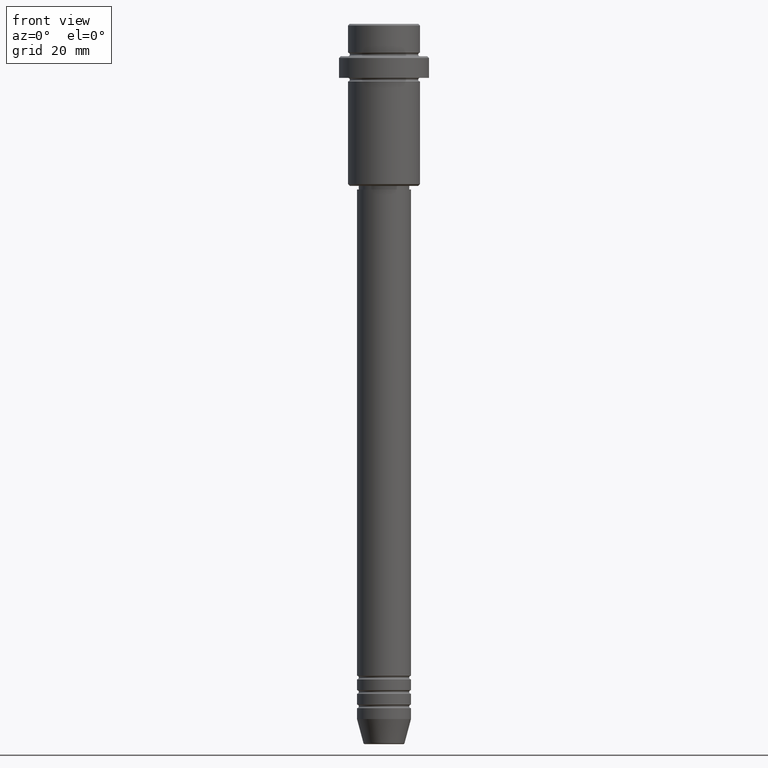
[diagram: clean part render]
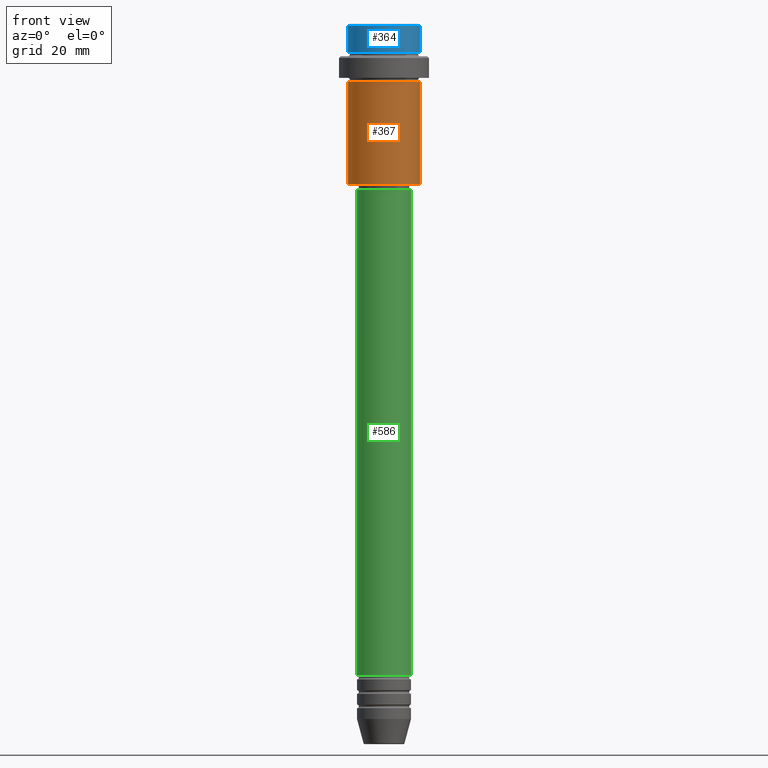
[diagram: same view with three faces highlighted in distinct colors, each labeled with its STEP entity id]
A machine part, front view with three faces highlighted in distinct colors.
Their STEP definitions:

[orange] entity #367 — the highlighted cylindrical surface (edge-blend (fillet) strip) has radius 10 mm, axis along (-0, -0, 1).
#96 = FACE_OUTER_BOUND ( 'NONE', #1417, .T. ) ;
#248 = EDGE_CURVE ( 'NONE', #526, #519, #1131, .T. ) ;
#282 = VECTOR ( 'NONE', #450, 1000.000000000000000 ) ;
#347 = ORIENTED_EDGE ( 'NONE', *, *, #395, .T. ) ;
#366 = CARTESIAN_POINT ( 'NONE',  ( -9.999999999999998224, 1.224646799147353059E-15, 0.000000000000000000 ) ) ;
#367 = ADVANCED_FACE ( 'NONE', ( #96 ), #1047, .T. ) ;
#386 = DIRECTION ( 'NONE',  ( -0.000000000000000000, -0.000000000000000000, 1.000000000000000000 ) ) ;
#395 = EDGE_CURVE ( 'NONE', #519, #584, #550, .T. ) ;
#407 = ORIENTED_EDGE ( 'NONE', *, *, #248, .T. ) ;
#450 = DIRECTION ( 'NONE',  ( -0.000000000000000000, -0.000000000000000000, 1.000000000000000000 ) ) ;
#507 = AXIS2_PLACEMENT_3D ( 'NONE', #1363, #386, #595 ) ;
#519 = VERTEX_POINT ( 'NONE', #940 ) ;
#526 = VERTEX_POINT ( 'NONE', #1071 ) ;
#533 = CARTESIAN_POINT ( 'NONE',  ( 9.999999999999998224, 0.000000000000000000, -16.00000000000000000 ) ) ;
#537 = CARTESIAN_POINT ( 'NONE',  ( 9.999999999999998224, 0.000000000000000000, 0.000000000000000000 ) ) ;
#550 = LINE ( 'NONE', #537, #282 ) ;
#562 = CARTESIAN_POINT ( 'NONE',  ( 0.000000000000000000, 0.000000000000000000, -44.50000000000001421 ) ) ;
#584 = VERTEX_POINT ( 'NONE', #533 ) ;
#595 = DIRECTION ( 'NONE',  ( 1.000000000000000000, 0.000000000000000000, 0.000000000000000000 ) ) ;
#634 = DIRECTION ( 'NONE',  ( 1.000000000000000000, 0.000000000000000000, 0.000000000000000000 ) ) ;
#728 = VECTOR ( 'NONE', #1156, 1000.000000000000000 ) ;
#811 = EDGE_CURVE ( 'NONE', #526, #943, #1020, .T. ) ;
#849 = ORIENTED_EDGE ( 'NONE', *, *, #811, .F. ) ;
#940 = CARTESIAN_POINT ( 'NONE',  ( 9.999999999999998224, 0.000000000000000000, -44.50000000000001421 ) ) ;
#943 = VERTEX_POINT ( 'NONE', #1147 ) ;
#944 = CARTESIAN_POINT ( 'NONE',  ( 0.000000000000000000, 0.000000000000000000, 0.000000000000000000 ) ) ;
#1000 = DIRECTION ( 'NONE',  ( -1.000000000000000000, 0.000000000000000000, 0.000000000000000000 ) ) ;
#1002 = ORIENTED_EDGE ( 'NONE', *, *, #1239, .F. ) ;
#1020 = LINE ( 'NONE', #366, #728 ) ;
#1047 = CYLINDRICAL_SURFACE ( 'NONE', #1155, 9.999999999999998224 ) ;
#1058 = AXIS2_PLACEMENT_3D ( 'NONE', #562, #1343, #1000 ) ;
#1065 = CIRCLE ( 'NONE', #507, 9.999999999999998224 ) ;
#1071 = CARTESIAN_POINT ( 'NONE',  ( -9.999999999999998224, 1.224646799147353059E-15, -44.50000000000001421 ) ) ;
#1131 = CIRCLE ( 'NONE', #1058, 9.999999999999998224 ) ;
#1147 = CARTESIAN_POINT ( 'NONE',  ( -9.999999999999998224, 1.224646799147353059E-15, -16.00000000000000000 ) ) ;
#1155 = AXIS2_PLACEMENT_3D ( 'NONE', #944, #1387, #634 ) ;
#1156 = DIRECTION ( 'NONE',  ( -0.000000000000000000, -0.000000000000000000, 1.000000000000000000 ) ) ;
#1239 = EDGE_CURVE ( 'NONE', #943, #584, #1065, .T. ) ;
#1343 = DIRECTION ( 'NONE',  ( -0.000000000000000000, -0.000000000000000000, 1.000000000000000000 ) ) ;
#1363 = CARTESIAN_POINT ( 'NONE',  ( 0.000000000000000000, 0.000000000000000000, -16.00000000000000000 ) ) ;
#1387 = DIRECTION ( 'NONE',  ( -0.000000000000000000, -0.000000000000000000, 1.000000000000000000 ) ) ;
#1417 = EDGE_LOOP ( 'NONE', ( #849, #407, #347, #1002 ) ) ;

[blue] entity #364 — the highlighted cylindrical surface (edge-blend (fillet) strip) has radius 10 mm, axis along (-0, -0, 1).
#29 = LINE ( 'NONE', #917, #35 ) ;
#35 = VECTOR ( 'NONE', #145, 1000.000000000000000 ) ;
#47 = DIRECTION ( 'NONE',  ( 1.000000000000000000, 0.000000000000000000, 0.000000000000000000 ) ) ;
#73 = CARTESIAN_POINT ( 'NONE',  ( 0.000000000000000000, 0.000000000000000000, 0.000000000000000000 ) ) ;
#106 = AXIS2_PLACEMENT_3D ( 'NONE', #73, #1381, #518 ) ;
#133 = DIRECTION ( 'NONE',  ( -0.000000000000000000, -0.000000000000000000, 1.000000000000000000 ) ) ;
#134 = ORIENTED_EDGE ( 'NONE', *, *, #161, .T. ) ;
#145 = DIRECTION ( 'NONE',  ( -0.000000000000000000, -0.000000000000000000, 1.000000000000000000 ) ) ;
#161 = EDGE_CURVE ( 'NONE', #1142, #474, #961, .T. ) ;
#168 = FACE_OUTER_BOUND ( 'NONE', #664, .T. ) ;
#213 = AXIS2_PLACEMENT_3D ( 'NONE', #993, #133, #434 ) ;
#226 = EDGE_CURVE ( 'NONE', #474, #291, #960, .T. ) ;
#291 = VERTEX_POINT ( 'NONE', #1019 ) ;
#327 = CIRCLE ( 'NONE', #213, 9.999999999999998224 ) ;
#339 = CARTESIAN_POINT ( 'NONE',  ( 9.999999999999998224, 0.000000000000000000, 0.000000000000000000 ) ) ;
#364 = ADVANCED_FACE ( 'NONE', ( #168 ), #807, .T. ) ;
#412 = CARTESIAN_POINT ( 'NONE',  ( -9.999999999999998224, 1.224646799147353059E-15, -7.999999999999998224 ) ) ;
#434 = DIRECTION ( 'NONE',  ( 1.000000000000000000, 0.000000000000000000, 0.000000000000000000 ) ) ;
#454 = ORIENTED_EDGE ( 'NONE', *, *, #226, .T. ) ;
#457 = ORIENTED_EDGE ( 'NONE', *, *, #1211, .F. ) ;
#474 = VERTEX_POINT ( 'NONE', #1281 ) ;
#518 = DIRECTION ( 'NONE',  ( 1.000000000000000000, 0.000000000000000000, 0.000000000000000000 ) ) ;
#552 = CARTESIAN_POINT ( 'NONE',  ( 0.000000000000000000, 0.000000000000000000, -0.4999999999999970024 ) ) ;
#616 = AXIS2_PLACEMENT_3D ( 'NONE', #552, #858, #47 ) ;
#649 = CARTESIAN_POINT ( 'NONE',  ( 9.999999999999998224, 0.000000000000000000, -7.999999999999998224 ) ) ;
#664 = EDGE_LOOP ( 'NONE', ( #457, #1228, #134, #454 ) ) ;
#721 = EDGE_CURVE ( 'NONE', #1348, #1142, #327, .T. ) ;
#807 = CYLINDRICAL_SURFACE ( 'NONE', #106, 9.999999999999998224 ) ;
#858 = DIRECTION ( 'NONE',  ( 0.000000000000000000, 0.000000000000000000, -1.000000000000000000 ) ) ;
#890 = VECTOR ( 'NONE', #1298, 1000.000000000000000 ) ;
#917 = CARTESIAN_POINT ( 'NONE',  ( -9.999999999999998224, 1.224646799147353059E-15, 0.000000000000000000 ) ) ;
#960 = CIRCLE ( 'NONE', #616, 9.999999999999998224 ) ;
#961 = LINE ( 'NONE', #339, #890 ) ;
#993 = CARTESIAN_POINT ( 'NONE',  ( 0.000000000000000000, 0.000000000000000000, -7.999999999999998224 ) ) ;
#1019 = CARTESIAN_POINT ( 'NONE',  ( -9.999999999999998224, 1.224646799147353059E-15, -0.4999999999999970024 ) ) ;
#1142 = VERTEX_POINT ( 'NONE', #649 ) ;
#1211 = EDGE_CURVE ( 'NONE', #1348, #291, #29, .T. ) ;
#1228 = ORIENTED_EDGE ( 'NONE', *, *, #721, .T. ) ;
#1281 = CARTESIAN_POINT ( 'NONE',  ( 9.999999999999998224, 0.000000000000000000, -0.4999999999999970024 ) ) ;
#1298 = DIRECTION ( 'NONE',  ( -0.000000000000000000, -0.000000000000000000, 1.000000000000000000 ) ) ;
#1348 = VERTEX_POINT ( 'NONE', #412 ) ;
#1381 = DIRECTION ( 'NONE',  ( -0.000000000000000000, -0.000000000000000000, 1.000000000000000000 ) ) ;

[green] entity #586 — the highlighted cylindrical surface (edge-blend (fillet) strip) has radius 7.5 mm, axis along (-0, -0, 1).
#18 = VERTEX_POINT ( 'NONE', #375 ) ;
#76 = LINE ( 'NONE', #1397, #731 ) ;
#78 = AXIS2_PLACEMENT_3D ( 'NONE', #1230, #328, #561 ) ;
#122 = AXIS2_PLACEMENT_3D ( 'NONE', #1161, #626, #1402 ) ;
#160 = CARTESIAN_POINT ( 'NONE',  ( 7.500000000000000000, 0.000000000000000000, -46.00000000000001421 ) ) ;
#299 = CARTESIAN_POINT ( 'NONE',  ( 0.000000000000000000, 0.000000000000000000, -46.00000000000001421 ) ) ;
#328 = DIRECTION ( 'NONE',  ( -0.000000000000000000, -0.000000000000000000, 1.000000000000000000 ) ) ;
#340 = CARTESIAN_POINT ( 'NONE',  ( 7.500000000000000000, 0.000000000000000000, 0.000000000000000000 ) ) ;
#375 = CARTESIAN_POINT ( 'NONE',  ( -7.500000000000000000, 9.184850993605147944E-16, -46.00000000000001421 ) ) ;
#423 = FACE_OUTER_BOUND ( 'NONE', #924, .T. ) ;
#459 = ORIENTED_EDGE ( 'NONE', *, *, #1077, .F. ) ;
#531 = DIRECTION ( 'NONE',  ( 1.000000000000000000, 0.000000000000000000, 0.000000000000000000 ) ) ;
#561 = DIRECTION ( 'NONE',  ( 1.000000000000000000, 0.000000000000000000, 0.000000000000000000 ) ) ;
#565 = VERTEX_POINT ( 'NONE', #727 ) ;
#570 = LINE ( 'NONE', #340, #820 ) ;
#586 = ADVANCED_FACE ( 'NONE', ( #423 ), #1385, .T. ) ;
#602 = ORIENTED_EDGE ( 'NONE', *, *, #1095, .T. ) ;
#626 = DIRECTION ( 'NONE',  ( -0.000000000000000000, -0.000000000000000000, 1.000000000000000000 ) ) ;
#655 = EDGE_CURVE ( 'NONE', #1159, #1294, #570, .T. ) ;
#678 = ORIENTED_EDGE ( 'NONE', *, *, #655, .T. ) ;
#724 = ORIENTED_EDGE ( 'NONE', *, *, #1362, .F. ) ;
#725 = DIRECTION ( 'NONE',  ( -0.000000000000000000, -0.000000000000000000, 1.000000000000000000 ) ) ;
#727 = CARTESIAN_POINT ( 'NONE',  ( -7.500000000000000000, 9.184850993605147944E-16, -180.9999999999998863 ) ) ;
#731 = VECTOR ( 'NONE', #1279, 1000.000000000000000 ) ;
#820 = VECTOR ( 'NONE', #1001, 1000.000000000000000 ) ;
#857 = CARTESIAN_POINT ( 'NONE',  ( 7.500000000000000000, 0.000000000000000000, -180.9999999999998863 ) ) ;
#924 = EDGE_LOOP ( 'NONE', ( #724, #602, #678, #459 ) ) ;
#1001 = DIRECTION ( 'NONE',  ( -0.000000000000000000, -0.000000000000000000, 1.000000000000000000 ) ) ;
#1077 = EDGE_CURVE ( 'NONE', #18, #1294, #1400, .T. ) ;
#1095 = EDGE_CURVE ( 'NONE', #565, #1159, #1200, .T. ) ;
#1159 = VERTEX_POINT ( 'NONE', #857 ) ;
#1161 = CARTESIAN_POINT ( 'NONE',  ( 0.000000000000000000, 0.000000000000000000, 0.000000000000000000 ) ) ;
#1200 = CIRCLE ( 'NONE', #78, 7.500000000000000000 ) ;
#1230 = CARTESIAN_POINT ( 'NONE',  ( 0.000000000000000000, 0.000000000000000000, -180.9999999999998863 ) ) ;
#1279 = DIRECTION ( 'NONE',  ( -0.000000000000000000, -0.000000000000000000, 1.000000000000000000 ) ) ;
#1294 = VERTEX_POINT ( 'NONE', #160 ) ;
#1362 = EDGE_CURVE ( 'NONE', #565, #18, #76, .T. ) ;
#1374 = AXIS2_PLACEMENT_3D ( 'NONE', #299, #725, #531 ) ;
#1385 = CYLINDRICAL_SURFACE ( 'NONE', #122, 7.500000000000000000 ) ;
#1397 = CARTESIAN_POINT ( 'NONE',  ( -7.500000000000000000, 9.184850993605147944E-16, 0.000000000000000000 ) ) ;
#1400 = CIRCLE ( 'NONE', #1374, 7.500000000000000000 ) ;
#1402 = DIRECTION ( 'NONE',  ( 1.000000000000000000, 0.000000000000000000, 0.000000000000000000 ) ) ;